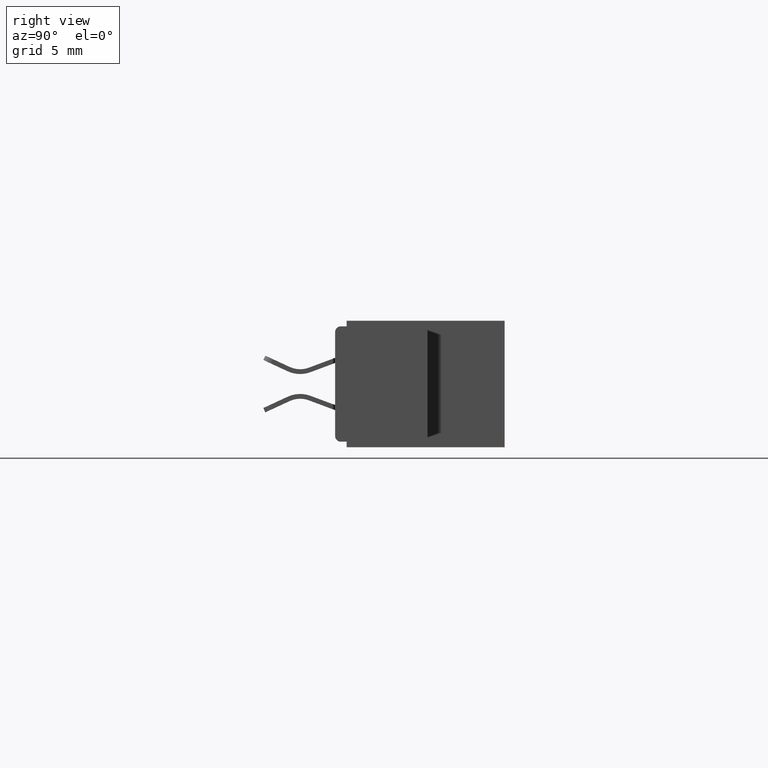
[diagram: clean part render]
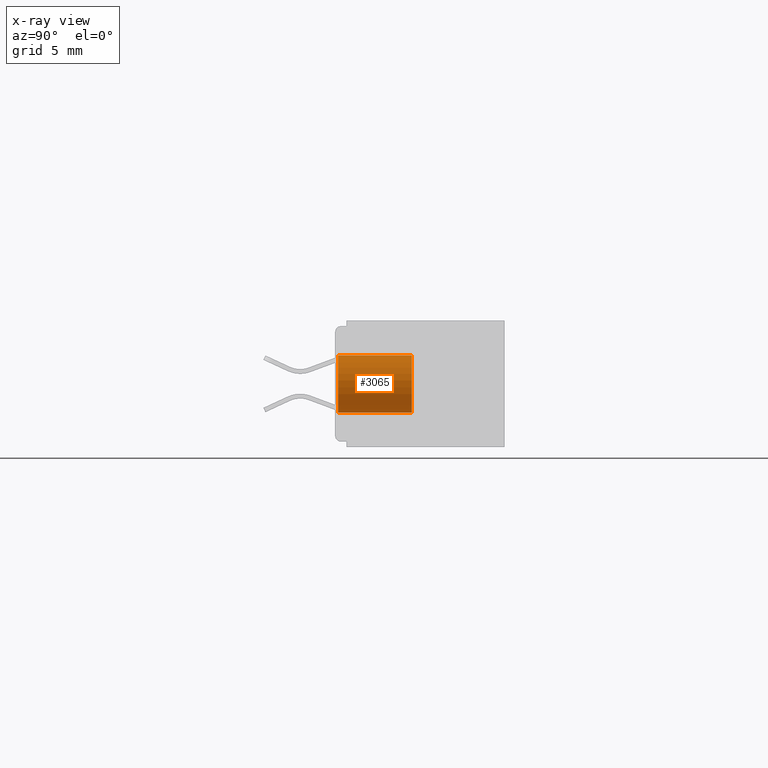
[diagram: x-ray — body ghosted, one internal face saturated and labeled with its STEP entity id]
A machine part, right view, then the same camera in x-ray: the body is ghosted and one INTERNAL B-rep face — a face not visible from any outside direction — is saturated and labeled: STEP entity #3065.
In plain terms, the highlighted cylindrical surface (edge-blend (fillet) strip) has radius 1.9685 mm, axis along (0, 1, -0).
Its self-contained STEP definition (entity closure, byte-faithful):
#557 = EDGE_CURVE ( 'NONE', #5675, #4221, #3516, .T. ) ;
#621 = DIRECTION ( 'NONE',  ( 6.779273404243070200E-032, 1.000000000000000000, 4.005934284325450600E-032 ) ) ;
#713 = LINE ( 'NONE', #9829, #10857 ) ;
#719 = VERTEX_POINT ( 'NONE', #11310 ) ;
#743 = VERTEX_POINT ( 'NONE', #9405 ) ;
#952 = ORIENTED_EDGE ( 'NONE', *, *, #3392, .F. ) ;
#1421 = DIRECTION ( 'NONE',  ( -5.551115123125779000E-017, 0.0000000000000000000, 1.000000000000000000 ) ) ;
#1491 = ORIENTED_EDGE ( 'NONE', *, *, #10011, .F. ) ;
#1625 = CARTESIAN_POINT ( 'NONE',  ( 0.0000000000000000000, 0.2400000000000000500, 0.0000000000000000000 ) ) ;
#1653 = ORIENTED_EDGE ( 'NONE', *, *, #9717, .T. ) ;
#2627 = CIRCLE ( 'NONE', #6909, 0.07750000000000005500 ) ;
#2756 = CARTESIAN_POINT ( 'NONE',  ( 4.302114220422481600E-018, 0.2400000000000000500, -0.07750000000000005500 ) ) ;
#3065 = ADVANCED_FACE ( 'NONE', ( #9147 ), #6641, .T. ) ;
#3122 = DIRECTION ( 'NONE',  ( -6.779273404243070200E-032, -1.000000000000000000, -4.005934284325450600E-032 ) ) ;
#3392 = EDGE_CURVE ( 'NONE', #719, #743, #2627, .T. ) ;
#3516 = CIRCLE ( 'NONE', #10145, 0.07750000000000005500 ) ;
#3772 = AXIS2_PLACEMENT_3D ( 'NONE', #6977, #3122, #5056 ) ;
#4221 = VERTEX_POINT ( 'NONE', #11395 ) ;
#4511 = DIRECTION ( 'NONE',  ( 6.779273404243070200E-032, 1.000000000000000000, 4.005934284325450600E-032 ) ) ;
#5056 = DIRECTION ( 'NONE',  ( 5.551115123125779000E-017, 0.0000000000000000000, -1.000000000000000000 ) ) ;
#5370 = EDGE_LOOP ( 'NONE', ( #952, #1653, #10328, #1491 ) ) ;
#5675 = VERTEX_POINT ( 'NONE', #10990 ) ;
#6379 = VECTOR ( 'NONE', #11375, 39.37007874015748100 ) ;
#6522 = LINE ( 'NONE', #2756, #6379 ) ;
#6641 = CYLINDRICAL_SURFACE ( 'NONE', #3772, 0.07750000000000005500 ) ;
#6909 = AXIS2_PLACEMENT_3D ( 'NONE', #1625, #4511, #11150 ) ;
#6977 = CARTESIAN_POINT ( 'NONE',  ( 0.0000000000000000000, 0.2400000000000000500, 0.0000000000000000000 ) ) ;
#8896 = DIRECTION ( 'NONE',  ( -6.779273404243070200E-032, -1.000000000000000000, -4.005934284325450600E-032 ) ) ;
#9032 = CARTESIAN_POINT ( 'NONE',  ( 0.0000000000000000000, 0.03999999999999998000, 0.0000000000000000000 ) ) ;
#9147 = FACE_OUTER_BOUND ( 'NONE', #5370, .T. ) ;
#9405 = CARTESIAN_POINT ( 'NONE',  ( 4.302114220422470800E-018, 0.2400000000000000500, -0.07749999999999999900 ) ) ;
#9717 = EDGE_CURVE ( 'NONE', #719, #5675, #713, .T. ) ;
#9829 = CARTESIAN_POINT ( 'NONE',  ( 5.188898472969513300E-018, 0.2400000000000000500, 0.07750000000000005500 ) ) ;
#10011 = EDGE_CURVE ( 'NONE', #743, #4221, #6522, .T. ) ;
#10145 = AXIS2_PLACEMENT_3D ( 'NONE', #9032, #621, #1421 ) ;
#10328 = ORIENTED_EDGE ( 'NONE', *, *, #557, .T. ) ;
#10857 = VECTOR ( 'NONE', #8896, 39.37007874015748100 ) ;
#10990 = CARTESIAN_POINT ( 'NONE',  ( 5.188898472969501700E-018, 0.03999999999999998000, 0.07749999999999999900 ) ) ;
#11150 = DIRECTION ( 'NONE',  ( -5.551115123125779000E-017, 0.0000000000000000000, 1.000000000000000000 ) ) ;
#11310 = CARTESIAN_POINT ( 'NONE',  ( 5.188898472969501700E-018, 0.2400000000000000500, 0.07749999999999999900 ) ) ;
#11375 = DIRECTION ( 'NONE',  ( -6.779273404243070200E-032, -1.000000000000000000, -4.005934284325450600E-032 ) ) ;
#11395 = CARTESIAN_POINT ( 'NONE',  ( 4.302114220422470800E-018, 0.03999999999999998000, -0.07749999999999999900 ) ) ;